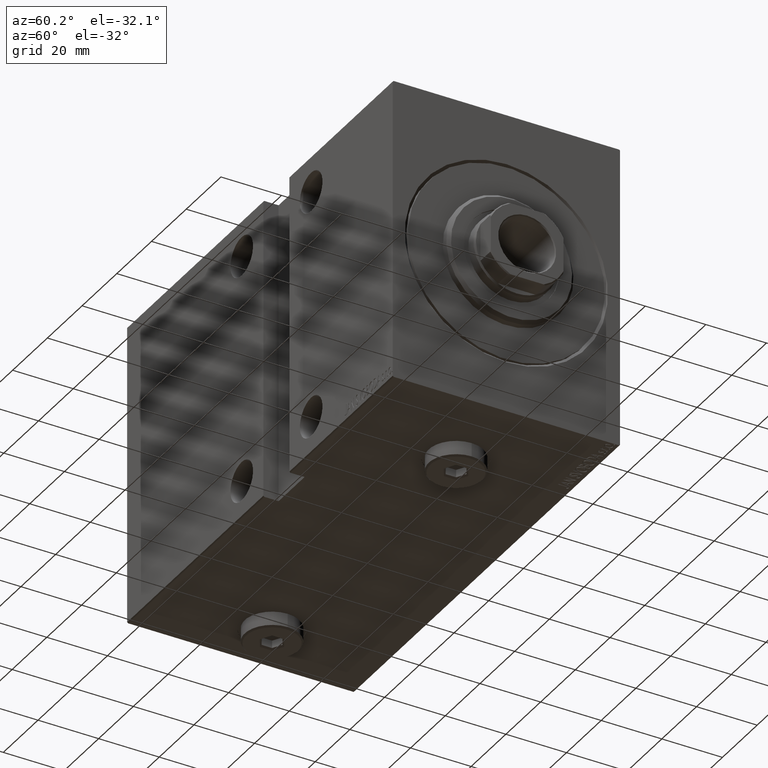
[diagram: clean part render]
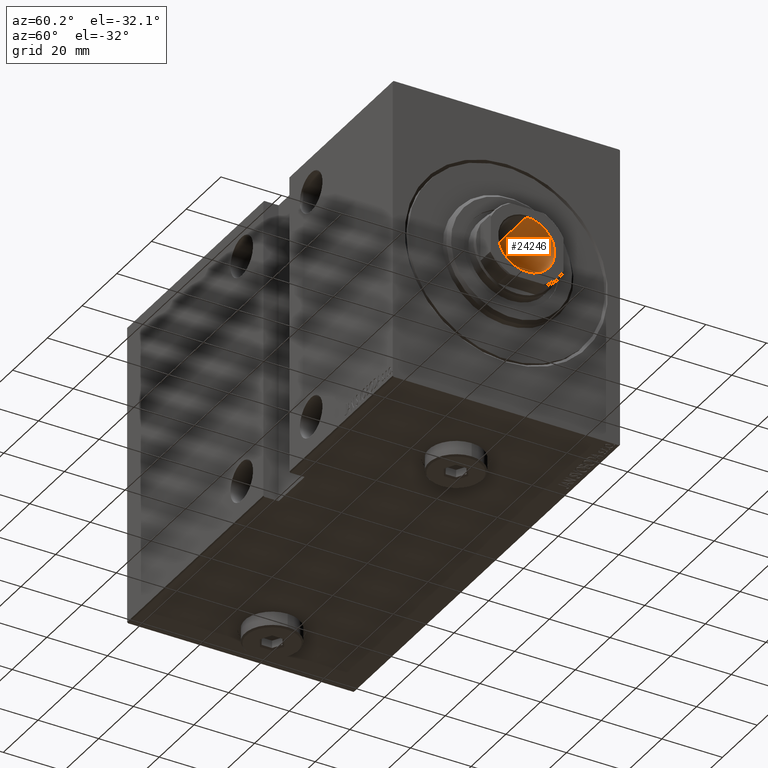
[diagram: same view with one face highlighted and labeled with its STEP entity id]
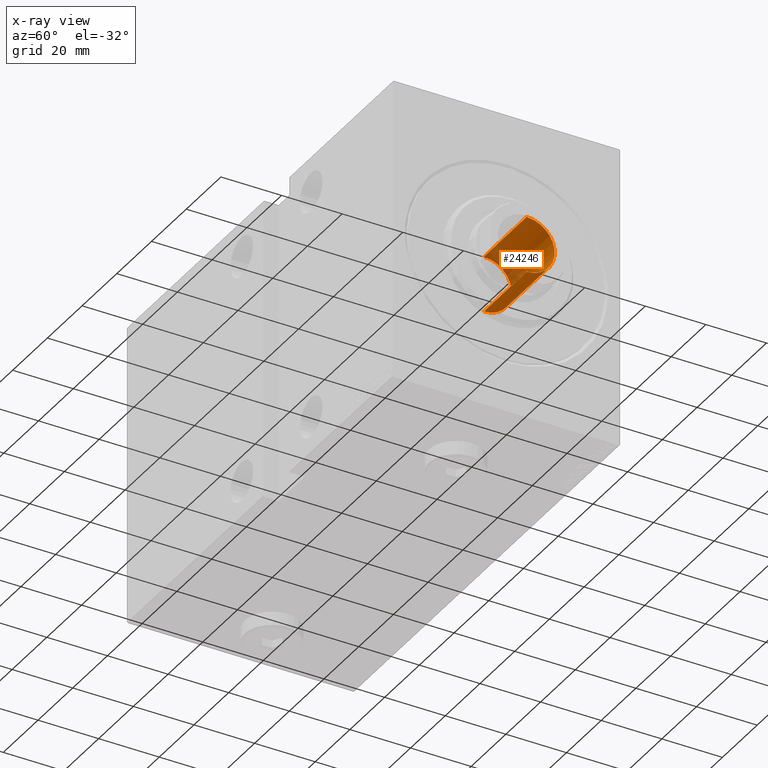
[diagram: x-ray of the same camera — body ghosted, the highlighted face saturated]
A machine part, auxiliary view. The second image highlights one B-rep face of the part: STEP entity #24246.
The next image is the same camera in x-ray: the body ghosted, the highlighted face saturated — about 17% of this face is hidden behind the body in this view.
In plain terms, the highlighted cylindrical surface (edge-blend (fillet) strip) has radius 9.25 mm, axis along (1, 0, -0).
Its self-contained STEP definition (entity closure, byte-faithful):
#182 = LINE ( 'NONE', #23962, #29536 ) ;
#2958 = AXIS2_PLACEMENT_3D ( 'NONE', #18753, #35577, #15387 ) ;
#3380 = CARTESIAN_POINT ( 'NONE',  ( 9.249999999999994671, 0.000000000000000000, 150.7000000000000171 ) ) ;
#5063 = DIRECTION ( 'NONE',  ( -0.000000000000000000, -0.000000000000000000, 1.000000000000000000 ) ) ;
#5347 = DIRECTION ( 'NONE',  ( -0.000000000000000000, -0.000000000000000000, 1.000000000000000000 ) ) ;
#5724 = DIRECTION ( 'NONE',  ( 1.000000000000000000, 0.000000000000000000, 0.000000000000000000 ) ) ;
#8287 = LINE ( 'NONE', #42363, #27387 ) ;
#9014 = EDGE_CURVE ( 'NONE', #23810, #17811, #33311, .T. ) ;
#9834 = CARTESIAN_POINT ( 'NONE',  ( 0.000000000000000000, 0.000000000000000000, 126.0000000000000284 ) ) ;
#10713 = ORIENTED_EDGE ( 'NONE', *, *, #20457, .T. ) ;
#12688 = CYLINDRICAL_SURFACE ( 'NONE', #16766, 9.249999999999994671 ) ;
#14549 = EDGE_CURVE ( 'NONE', #17811, #16756, #182, .T. ) ;
#14756 = ORIENTED_EDGE ( 'NONE', *, *, #14549, .F. ) ;
#15387 = DIRECTION ( 'NONE',  ( 1.000000000000000000, 0.000000000000000000, 0.000000000000000000 ) ) ;
#16597 = EDGE_CURVE ( 'NONE', #27671, #16756, #38053, .T. ) ;
#16756 = VERTEX_POINT ( 'NONE', #39819 ) ;
#16766 = AXIS2_PLACEMENT_3D ( 'NONE', #39162, #5063, #5724 ) ;
#17811 = VERTEX_POINT ( 'NONE', #31940 ) ;
#18753 = CARTESIAN_POINT ( 'NONE',  ( 0.000000000000000000, 0.000000000000000000, 150.7000000000000171 ) ) ;
#20457 = EDGE_CURVE ( 'NONE', #23810, #27671, #8287, .T. ) ;
#21855 = AXIS2_PLACEMENT_3D ( 'NONE', #9834, #44139, #34252 ) ;
#23810 = VERTEX_POINT ( 'NONE', #35754 ) ;
#23962 = CARTESIAN_POINT ( 'NONE',  ( -9.249999999999994671, 1.132798289211300909E-15, 151.0000000000000284 ) ) ;
#24246 = ADVANCED_FACE ( 'NONE', ( #39821 ), #12688, .F. ) ;
#24765 = EDGE_LOOP ( 'NONE', ( #14756, #32473, #10713, #29325 ) ) ;
#27387 = VECTOR ( 'NONE', #5347, 1000.000000000000000 ) ;
#27671 = VERTEX_POINT ( 'NONE', #3380 ) ;
#29325 = ORIENTED_EDGE ( 'NONE', *, *, #16597, .T. ) ;
#29536 = VECTOR ( 'NONE', #37422, 1000.000000000000000 ) ;
#31940 = CARTESIAN_POINT ( 'NONE',  ( -9.249999999999994671, 1.132798289211300909E-15, 126.0000000000000284 ) ) ;
#32473 = ORIENTED_EDGE ( 'NONE', *, *, #9014, .F. ) ;
#33311 = CIRCLE ( 'NONE', #21855, 9.249999999999994671 ) ;
#34252 = DIRECTION ( 'NONE',  ( 1.000000000000000000, 0.000000000000000000, 0.000000000000000000 ) ) ;
#35577 = DIRECTION ( 'NONE',  ( 0.000000000000000000, 0.000000000000000000, 1.000000000000000000 ) ) ;
#35754 = CARTESIAN_POINT ( 'NONE',  ( 9.249999999999994671, 0.000000000000000000, 126.0000000000000284 ) ) ;
#37422 = DIRECTION ( 'NONE',  ( -0.000000000000000000, -0.000000000000000000, 1.000000000000000000 ) ) ;
#38053 = CIRCLE ( 'NONE', #2958, 9.249999999999994671 ) ;
#39162 = CARTESIAN_POINT ( 'NONE',  ( 0.000000000000000000, 0.000000000000000000, 151.0000000000000284 ) ) ;
#39819 = CARTESIAN_POINT ( 'NONE',  ( -9.249999999999994671, 1.132798289211300909E-15, 150.7000000000000171 ) ) ;
#39821 = FACE_OUTER_BOUND ( 'NONE', #24765, .T. ) ;
#42363 = CARTESIAN_POINT ( 'NONE',  ( 9.249999999999994671, 0.000000000000000000, 151.0000000000000284 ) ) ;
#44139 = DIRECTION ( 'NONE',  ( -0.000000000000000000, -0.000000000000000000, 1.000000000000000000 ) ) ;